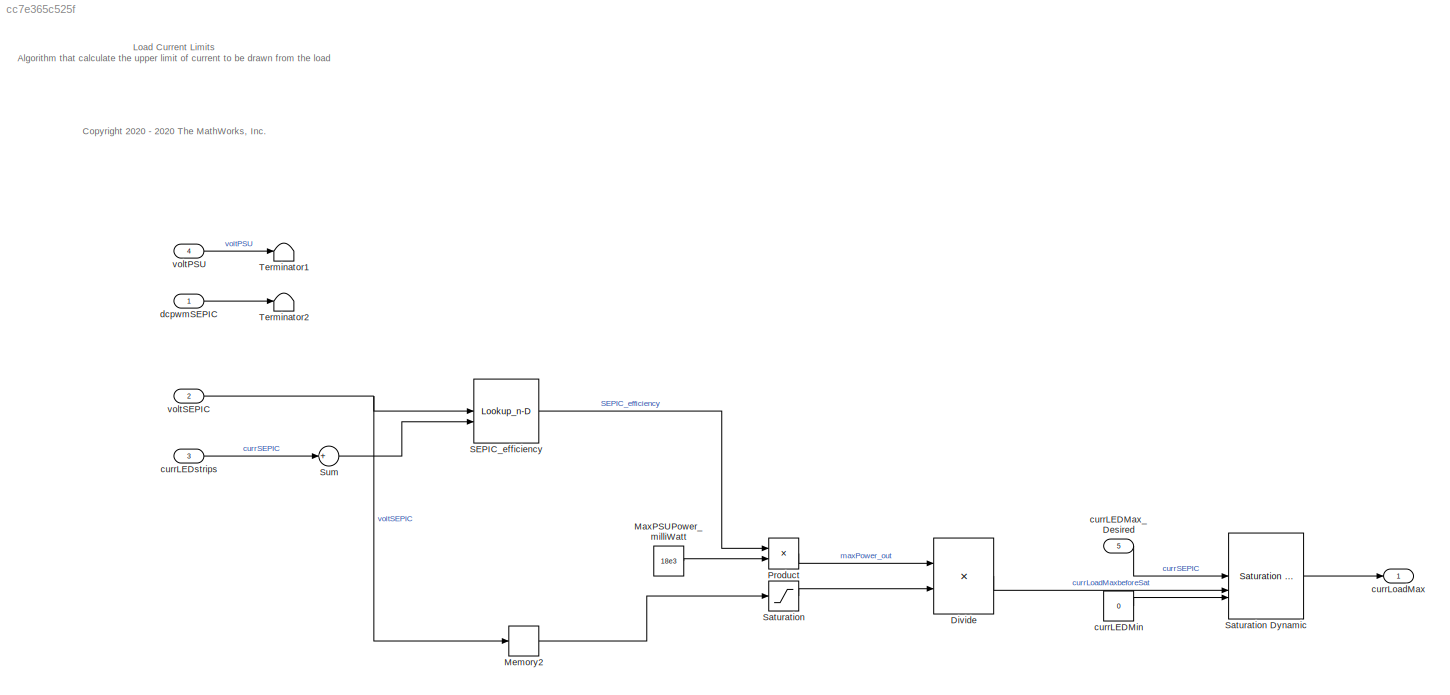
MODEL slx_cc7e365c525f
KIND model
CONFIG AbsTol = auto
CONFIG EnableMultiTasking = off
CONFIG FixedStep = auto
CONFIG MaxStep = auto
CONFIG MinStep = auto
CONFIG RelTol = 1e-3
CONFIG SampleTimeConstraint = Unconstrained
CONFIG SolverName = FixedStepDiscrete
CONFIG StartTime = 0.0
CONFIG StopTime = inf
WORKSPACE source: mxarray member
WORKSPACE TsModel = 0.1
BLOCK [Product] Divide
  Inputs = */
BLOCK [Constant] MaxPSUPower_milliWatt
  OutDataTypeStr = single
  Value = 18e3
BLOCK [Memory] Memory2
BLOCK [Product] Product
BLOCK [Lookup_n-D] SEPIC_efficiency
  BreakpointsForDimension1 = Voltage_Test_Vector
  BreakpointsForDimension2 = Curr_Test_Load
  ExtrapMethod = Clip
  InputPortMap = u0,u1
  InternalRulePriority = Speed
  RndMeth = Simplest
  Table = effMatrix'
  UseLastTableValue = on
BLOCK [Saturate] Saturation
  LowerLimit = 1e-3
  UpperLimit = 50
BLOCK [Reference] Saturation Dynamic  REF=simulink/Discontinuities/Saturation
Dynamic
  SourceBlock = simulink/Discontinuities/Saturation\nDynamic
  SourceType = Saturation Dynamic
BLOCK [Sum] Sum
  Inputs = +
BLOCK [Terminator] Terminator1
BLOCK [Terminator] Terminator2
BLOCK [Inport] currLEDMax_Desired
  OutDataTypeStr = single
  Port = 5
  PortDimensions = 1
  SampleTime = TsModel
  SamplingMode = Sample based
  SignalType = real
  Unit = mA
BLOCK [Constant] currLEDMin
  OutDataTypeStr = single
  Value = 0
BLOCK [Inport] currLEDstrips
  OutDataTypeStr = single
  Port = 3
  PortDimensions = 6
  SampleTime = TsModel
  SamplingMode = Sample based
  SignalType = real
  Unit = mA
BLOCK [Outport] currLoadMax
  OutDataTypeStr = single
  PortDimensions = 1
  SampleTime = TsModel
  SamplingMode = Sample based
  SignalType = real
  Unit = mA
BLOCK [Inport] dcpwmSEPIC
  OutDataTypeStr = single
  PortDimensions = 1
  SampleTime = TsModel
  SamplingMode = Sample based
  SignalType = real
  Unit = 1
BLOCK [Inport] voltPSU
  OutDataTypeStr = single
  Port = 4
  PortDimensions = 1
  SampleTime = TsModel
  SamplingMode = Sample based
  SignalType = real
  Unit = V
BLOCK [Inport] voltSEPIC
  OutDataTypeStr = single
  Port = 2
  PortDimensions = 1
  SampleTime = TsModel
  SamplingMode = Sample based
  SignalType = real
  Unit = V
ANNOTATION (root): <copyright redacted>
ANNOTATION (root): Load Current Limits Algorithm that calculate the upper limit of current to be drawn from the load
LINE Divide:1 -> Saturation Dynamic:2
LINE MaxPSUPower_milliWatt:1 -> Product:2
LINE Memory2:1 -> Saturation:1
LINE Product:1 -> Divide:1
LINE SEPIC_efficiency:1 -> Product:1
LINE Saturation Dynamic:1 -> currLoadMax:1
LINE Saturation:1 -> Divide:2
LINE Sum:1 -> SEPIC_efficiency:2
LINE currLEDMax_Desired:1 -> Saturation Dynamic:1
LINE currLEDMin:1 -> Saturation Dynamic:3
LINE currLEDstrips:1 -> Sum:1
LINE dcpwmSEPIC:1 -> Terminator2:1
LINE voltPSU:1 -> Terminator1:1
NET voltSEPIC:1 -> Memory2:1, SEPIC_efficiency:1
note: NET lines group one-source signal fan-out (src -> all destinations, sorted); 1:1 wires keep LINE
